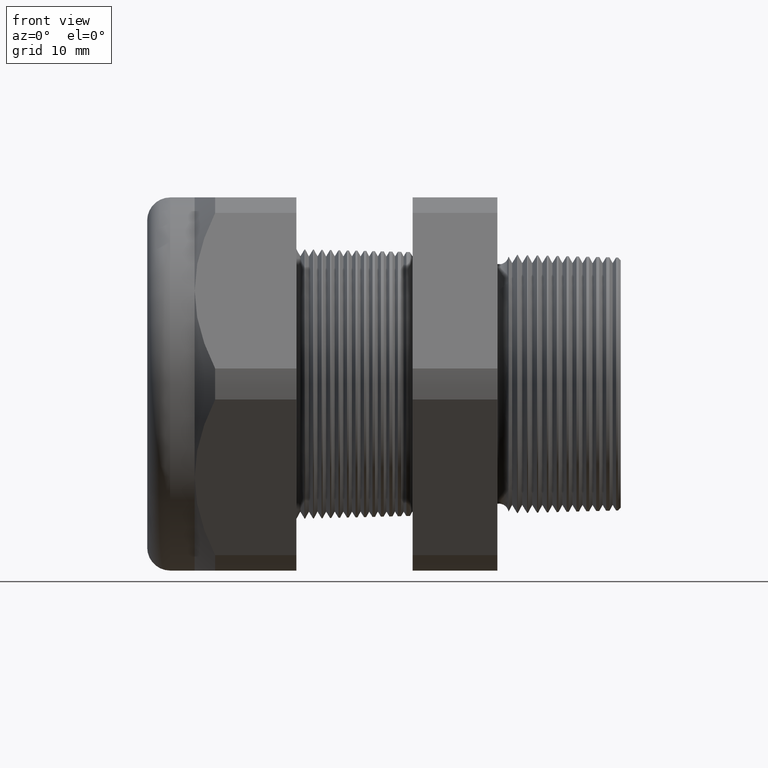
[diagram: clean part render]
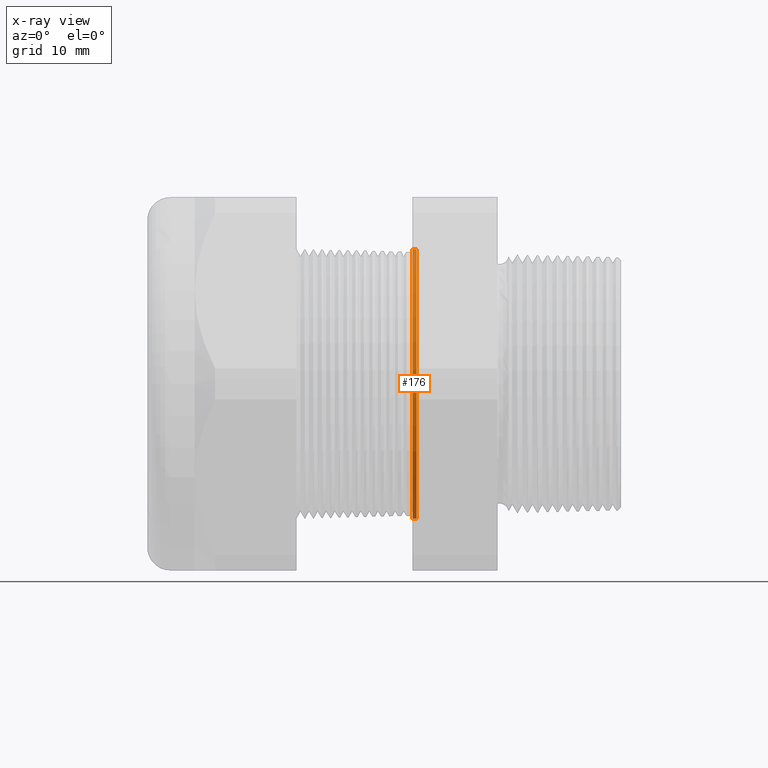
[diagram: x-ray — body ghosted, one internal face saturated and labeled with its STEP entity id]
A machine part, front view, then the same camera in x-ray: the body is ghosted and one INTERNAL B-rep face — a face not visible from any outside direction — is saturated and labeled: STEP entity #176.
In plain terms, the highlighted conical surface has half-angle 1.5 deg.
Its self-contained STEP definition (entity closure, byte-faithful):
#75 = ORIENTED_EDGE ( 'NONE', *, *, #107, .T. ) ;
#97 = ORIENTED_EDGE ( 'NONE', *, *, #175, .T. ) ;
#100 = VERTEX_POINT ( 'NONE', #657 ) ;
#107 = EDGE_CURVE ( 'NONE', #100, #115, #701, .T. ) ;
#113 = ORIENTED_EDGE ( 'NONE', *, *, #4115, .T. ) ;
#115 = VERTEX_POINT ( 'NONE', #690 ) ;
#175 = EDGE_CURVE ( 'NONE', #231, #100, #830, .T. ) ;
#176 = ADVANCED_FACE ( 'NONE', ( #825 ), #824, .F. ) ;
#178 = ORIENTED_EDGE ( 'NONE', *, *, #180, .F. ) ;
#180 = EDGE_CURVE ( 'NONE', #231, #4114, #823, .T. ) ;
#181 = EDGE_LOOP ( 'NONE', ( #97, #75, #113, #178 ) ) ;
#231 = VERTEX_POINT ( 'NONE', #909 ) ;
#657 = CARTESIAN_POINT ( 'NONE',  ( -0.5914573393463203900, 0.0000000000000000000, -0.4692443365923945100 ) ) ;
#690 = CARTESIAN_POINT ( 'NONE',  ( -0.6052755905511809600, 5.751017054842014700E-017, -0.4696061802346682100 ) ) ;
#698 = DIRECTION ( 'NONE',  ( -0.9996573249755573700, 3.205751595667405400E-018, -0.02617694830786618600 ) ) ;
#699 = VECTOR ( 'NONE', #698, 39.37007874015748100 ) ;
#700 = CARTESIAN_POINT ( 'NONE',  ( -0.5914573393463203900, 5.746585748258992000E-017, -0.4692443365923945100 ) ) ;
#701 = LINE ( 'NONE', #700, #699 ) ;
#816 = DIRECTION ( 'NONE',  ( -0.9996573249755573700, 0.0000000000000000000, 0.02617694830786618600 ) ) ;
#817 = VECTOR ( 'NONE', #816, 39.37007874015748100 ) ;
#818 = CARTESIAN_POINT ( 'NONE',  ( -0.5914573393463203900, 0.0000000000000000000, 0.4692443365923945100 ) ) ;
#819 = DIRECTION ( 'NONE',  ( 0.0000000000000000000, 0.0000000000000000000, 1.000000000000000000 ) ) ;
#820 = DIRECTION ( 'NONE',  ( -1.000000000000000000, 0.0000000000000000000, 0.0000000000000000000 ) ) ;
#821 = CARTESIAN_POINT ( 'NONE',  ( -0.5914573393463203900, 0.0000000000000000000, 0.0000000000000000000 ) ) ;
#822 = AXIS2_PLACEMENT_3D ( 'NONE', #821, #820, #819 ) ;
#823 = LINE ( 'NONE', #818, #817 ) ;
#824 = CONICAL_SURFACE ( 'NONE', #822, 0.4692443365923945100, 0.02617993877990797800 ) ;
#825 = FACE_OUTER_BOUND ( 'NONE', #181, .T. ) ;
#826 = DIRECTION ( 'NONE',  ( 0.0000000000000000000, 0.0000000000000000000, -1.000000000000000000 ) ) ;
#827 = DIRECTION ( 'NONE',  ( 1.000000000000000000, 0.0000000000000000000, 0.0000000000000000000 ) ) ;
#828 = CARTESIAN_POINT ( 'NONE',  ( -0.5914573393463203900, 0.0000000000000000000, 0.0000000000000000000 ) ) ;
#829 = AXIS2_PLACEMENT_3D ( 'NONE', #828, #827, #826 ) ;
#830 = CIRCLE ( 'NONE', #829, 0.4692443365923945100 ) ;
#909 = CARTESIAN_POINT ( 'NONE',  ( -0.5914573393463203900, 5.746585748258992000E-017, 0.4692443365923945100 ) ) ;
#1428 = DIRECTION ( 'NONE',  ( 0.0000000000000000000, 0.0000000000000000000, 1.000000000000000000 ) ) ;
#1429 = DIRECTION ( 'NONE',  ( -1.000000000000000000, 0.0000000000000000000, 0.0000000000000000000 ) ) ;
#1430 = CARTESIAN_POINT ( 'NONE',  ( -0.6052755905511809600, 0.0000000000000000000, 0.0000000000000000000 ) ) ;
#1431 = AXIS2_PLACEMENT_3D ( 'NONE', #1430, #1429, #1428 ) ;
#1432 = CIRCLE ( 'NONE', #1431, 0.4696061802346682700 ) ;
#1433 = CARTESIAN_POINT ( 'NONE',  ( -0.6052755905511809600, 0.0000000000000000000, 0.4696061802346682100 ) ) ;
#4114 = VERTEX_POINT ( 'NONE', #1433 ) ;
#4115 = EDGE_CURVE ( 'NONE', #115, #4114, #1432, .T. ) ;